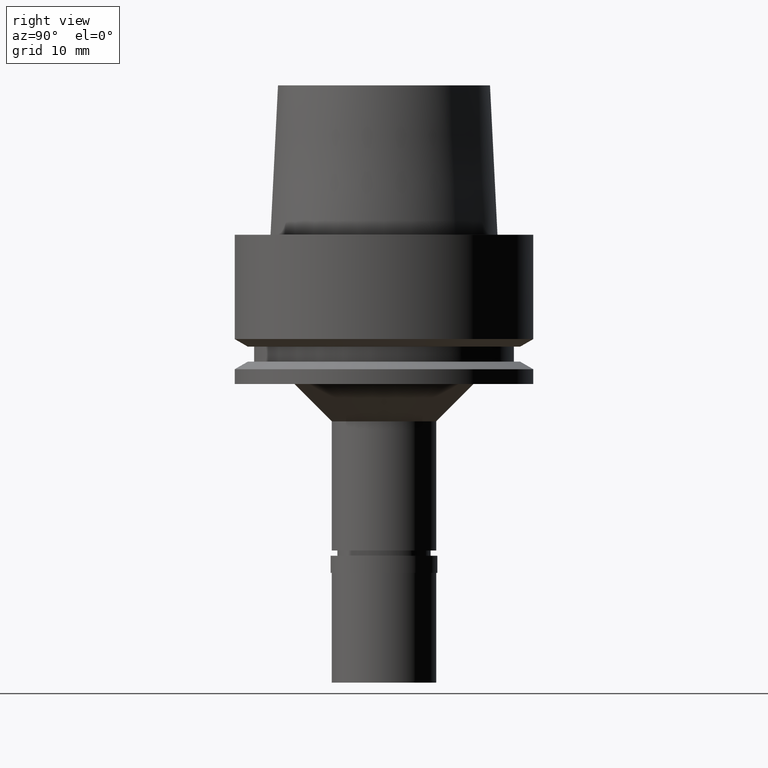
[diagram: clean part render]
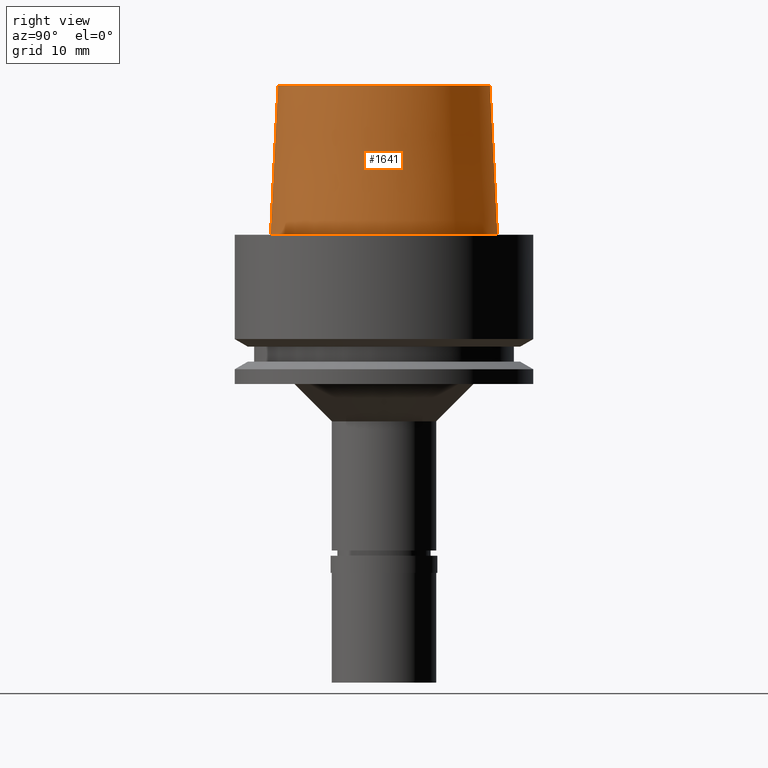
[diagram: same view with one face highlighted and labeled with its STEP entity id]
A machine part, right view. The second image highlights one B-rep face of the part: STEP entity #1641.
In plain terms, the highlighted conical surface has half-angle 2.862 deg.
Its self-contained STEP definition (entity closure, byte-faithful):
#61 = CIRCLE ( 'NONE', #279, 15.19999963424000100 ) ;
#64 = EDGE_CURVE ( 'NONE', #2385, #2544, #947, .T. ) ;
#105 = DIRECTION ( 'NONE',  ( 0.0000000000000000000, 0.04993752584496928548, -0.9987523434327867378 ) ) ;
#134 = CARTESIAN_POINT ( 'NONE',  ( 0.0000000000000000000, 15.19999963424000100, 3.801403636316999971E-13 ) ) ;
#175 = DIRECTION ( 'NONE',  ( 0.0000000000000000000, 0.0000000000000000000, 1.000000000000000000 ) ) ;
#207 = ORIENTED_EDGE ( 'NONE', *, *, #64, .F. ) ;
#244 = ORIENTED_EDGE ( 'NONE', *, *, #756, .T. ) ;
#279 = AXIS2_PLACEMENT_3D ( 'NONE', #2027, #175, #996 ) ;
#389 = ORIENTED_EDGE ( 'NONE', *, *, #993, .T. ) ;
#467 = CARTESIAN_POINT ( 'NONE',  ( 0.0000000000000000000, 14.20000146305999955, 20.00000000000000000 ) ) ;
#488 = DIRECTION ( 'NONE',  ( 0.0000000000000000000, 0.0000000000000000000, -1.000000000000000000 ) ) ;
#520 = EDGE_CURVE ( 'NONE', #1661, #1848, #1071, .T. ) ;
#604 = CARTESIAN_POINT ( 'NONE',  ( 0.0000000000000000000, -14.20000146305999955, 20.00000000000000000 ) ) ;
#651 = FACE_OUTER_BOUND ( 'NONE', #1251, .T. ) ;
#756 = EDGE_CURVE ( 'NONE', #1848, #2544, #61, .T. ) ;
#947 = LINE ( 'NONE', #962, #2013 ) ;
#962 = CARTESIAN_POINT ( 'NONE',  ( 0.0000000000000000000, 14.20000146305999955, 20.00000000000000000 ) ) ;
#993 = EDGE_CURVE ( 'NONE', #2385, #1661, #1537, .T. ) ;
#996 = DIRECTION ( 'NONE',  ( 0.0000000000000000000, -1.000000000000000000, 0.0000000000000000000 ) ) ;
#1039 = CONICAL_SURFACE ( 'NONE', #1392, 14.70000054865000116, 0.04995830450907576964 ) ;
#1071 = LINE ( 'NONE', #604, #1095 ) ;
#1091 = CARTESIAN_POINT ( 'NONE',  ( 0.0000000000000000000, 0.0000000000000000000, 20.00000000000000000 ) ) ;
#1095 = VECTOR ( 'NONE', #2269, 999.9999999999998863 ) ;
#1100 = DIRECTION ( 'NONE',  ( 0.0000000000000000000, -1.000000000000000000, 0.0000000000000000000 ) ) ;
#1184 = CARTESIAN_POINT ( 'NONE',  ( 0.0000000000000000000, -15.19999963424000100, 3.801403636316999971E-13 ) ) ;
#1251 = EDGE_LOOP ( 'NONE', ( #389, #2574, #244, #207 ) ) ;
#1282 = DIRECTION ( 'NONE',  ( 0.0000000000000000000, 1.000000000000000000, 0.0000000000000000000 ) ) ;
#1329 = CARTESIAN_POINT ( 'NONE',  ( 0.0000000000000000000, -14.20000146305999955, 20.00000000000000000 ) ) ;
#1392 = AXIS2_PLACEMENT_3D ( 'NONE', #1733, #488, #1100 ) ;
#1537 = CIRCLE ( 'NONE', #1673, 14.20000146305999955 ) ;
#1641 = ADVANCED_FACE ( 'NONE', ( #651 ), #1039, .T. ) ;
#1661 = VERTEX_POINT ( 'NONE', #1329 ) ;
#1673 = AXIS2_PLACEMENT_3D ( 'NONE', #1091, #2602, #1282 ) ;
#1733 = CARTESIAN_POINT ( 'NONE',  ( 0.0000000000000000000, 0.0000000000000000000, 10.00000000000000000 ) ) ;
#1848 = VERTEX_POINT ( 'NONE', #1184 ) ;
#2013 = VECTOR ( 'NONE', #105, 999.9999999999998863 ) ;
#2027 = CARTESIAN_POINT ( 'NONE',  ( 0.0000000000000000000, 0.0000000000000000000, 6.821210263297000155E-13 ) ) ;
#2269 = DIRECTION ( 'NONE',  ( 0.0000000000000000000, -0.04993752584496928548, -0.9987523434327867378 ) ) ;
#2385 = VERTEX_POINT ( 'NONE', #467 ) ;
#2544 = VERTEX_POINT ( 'NONE', #134 ) ;
#2574 = ORIENTED_EDGE ( 'NONE', *, *, #520, .T. ) ;
#2602 = DIRECTION ( 'NONE',  ( 0.0000000000000000000, 0.0000000000000000000, -1.000000000000000000 ) ) ;